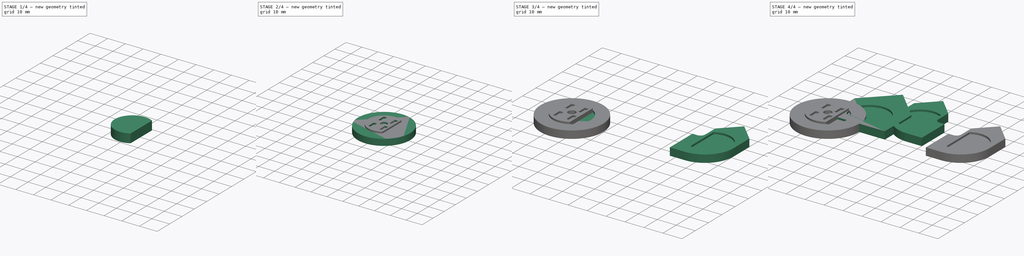
[diagram: build sequence overview — one tinted view per stage of 4, left to right]
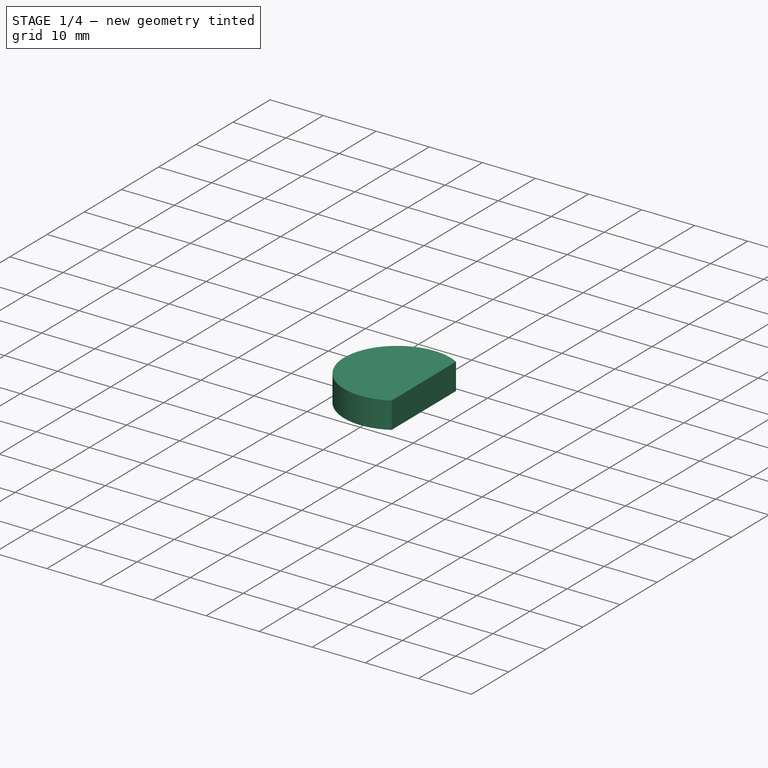
[diagram: stage 1 of 4 — iso view after this stage's code; geometry added in this stage tinted green]
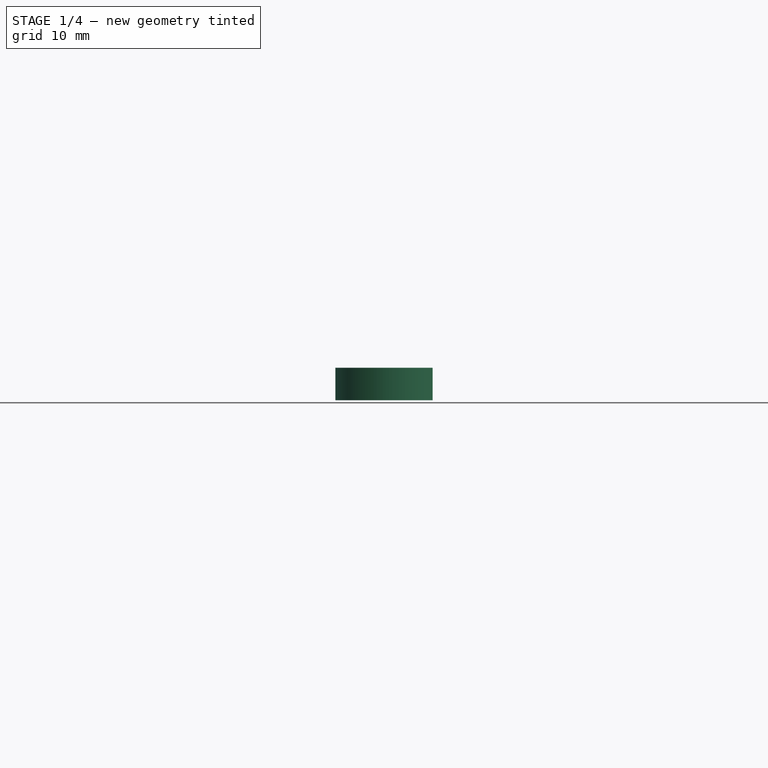
[diagram: stage 1 of 4 — front view after this stage's code; geometry added in this stage tinted green]
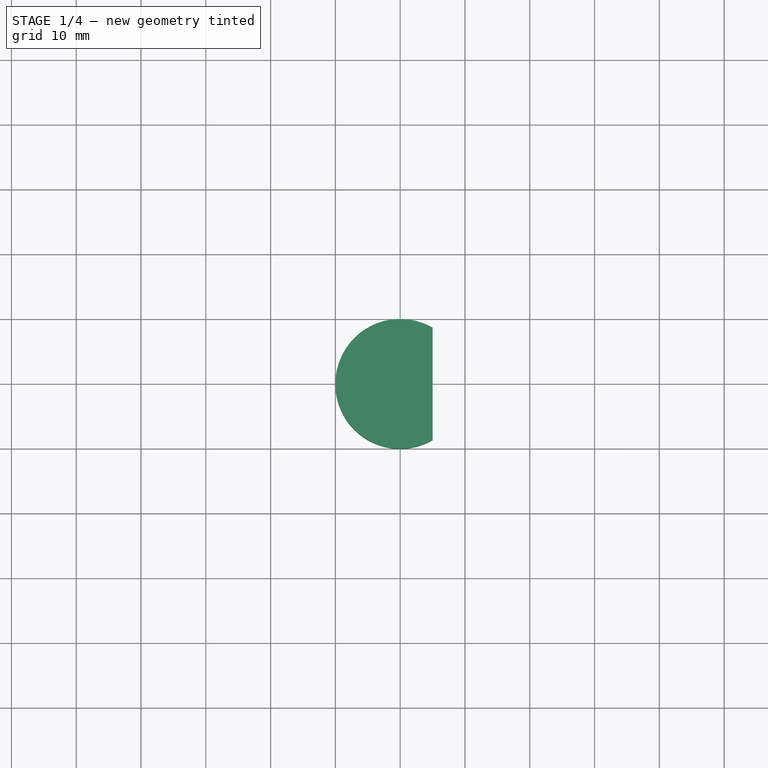
[diagram: stage 1 of 4 — top view after this stage's code; geometry added in this stage tinted green]
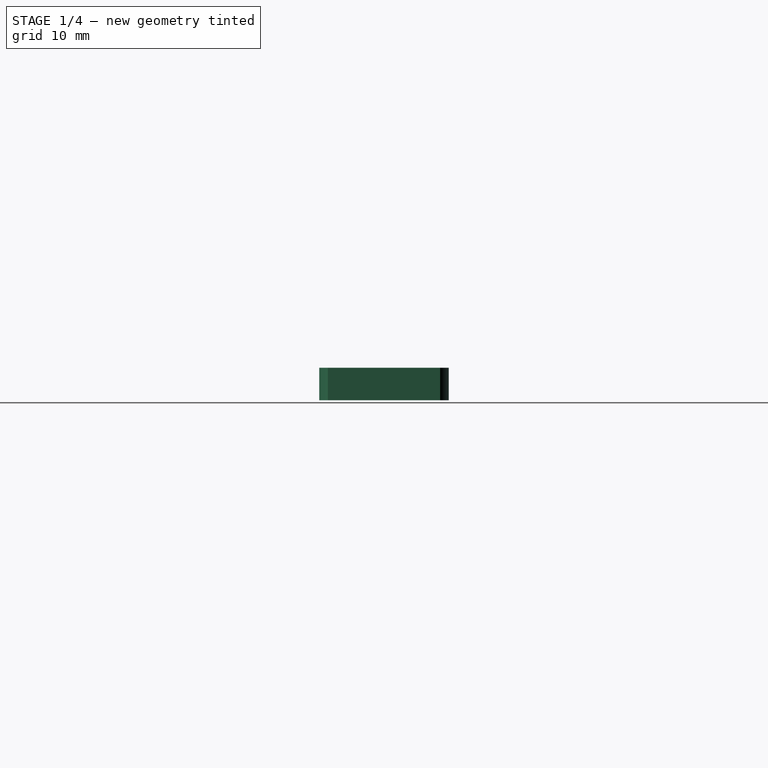
[diagram: stage 1 of 4 — right view after this stage's code; geometry added in this stage tinted green]
FCSTD DOCUMENT  (FreeCAD 0.14R3700 (Git))
Label: bloques
License: CC-BY 3.0
LicenseURL: http://creativecommons.org/licenses/by/3.0/
objects: Sketcher::SketchObject×12, PartDesign::Pocket×7, PartDesign::Pad×5
note: 36 computed .brp shape members not serialized (recipe doc carries the construction recipe); baked Part::Feature solids carry a one-line shape summary decoded from their .brp

FEATURE [Sketcher::SketchObject] Sketch007
  sketch-geometry (2):
    g0: ArcOfCircle CenterX=0 CenterY=0 CenterZ=0 NormalX=0 NormalY=0 NormalZ=1 Radius=10 StartAngle=1.0472 EndAngle=5.23599
    g1: LineSegment StartX=5 StartY=8.66025 StartZ=0 EndX=5 EndY=-8.66025 EndZ=0
  constraints (6):
    c: Radius(g0) = 10
    c: Coincident(g0,g-1)
    c: Vertical(g1)
    c: Coincident(g0,g1)
    c: Coincident(g0,g1)
    c: DistanceX(g-1,g0) = 5
FEATURE [PartDesign::Pad] Pad003
  Length = 5
  Length2 = 100
  Sketch = -> Sketch007
  Type = 0
FEATURE [Sketcher::SketchObject] Sketch010
  sketch-geometry (2):
    g0: ArcOfCircle CenterX=0 CenterY=0 CenterZ=0 NormalX=0 NormalY=0 NormalZ=1 Radius=10 StartAngle=1.0472 EndAngle=5.23599
    g1: LineSegment StartX=5 StartY=8.66025 StartZ=0 EndX=5 EndY=-8.66025 EndZ=0
  constraints (6):
    c: Coincident(g0,g-1)
    c: Radius(g0) = 10
    c: Vertical(g1)
    c: Coincident(g0,g1)
    c: Coincident(g0,g1)
    c: DistanceX(g-1,g0) = 5
FEATURE [PartDesign::Pad] Pad004
  Length = 4
  Length2 = 100
  Sketch = -> Sketch010
  Type = 0
FEATURE [Sketcher::SketchObject] Sketch011
  Placement = pos=(0,0,4) rot=(0,0,1;0rad)
  Support = -> Pad004 [Face4]
  sketch-geometry (4):
    g0: LineSegment StartX=-2 StartY=7 StartZ=0 EndX=2 EndY=7 EndZ=0
    g1: LineSegment StartX=2 StartY=7 StartZ=0 EndX=2 EndY=-7 EndZ=0
    g2: LineSegment StartX=2 StartY=-7 StartZ=0 EndX=-2 EndY=-7 EndZ=0
    g3: LineSegment StartX=-2 StartY=-7 StartZ=0 EndX=-2 EndY=7 EndZ=0
  constraints (13):
    c: Coincident(g0,g1)
    c: Coincident(g1,g2)
    c: Coincident(g2,g3)
    c: Coincident(g3,g0)
    c: Horizontal(g0)
    c: Horizontal(g2)
    c: Vertical(g1)
    c: Vertical(g3)
    c: Equal(g0,g2)
    c: DistanceX(g0) = 4
    c: Symmetric(g0,g0,g-2)
    c: DistanceY(g1) = -14
    c: DistanceY(g-1,g0) = 7
FEATURE [PartDesign::Pocket] Pocket006  label="fichaLab2"
  Length = 5
  Sketch = -> Sketch011
  Type = 0
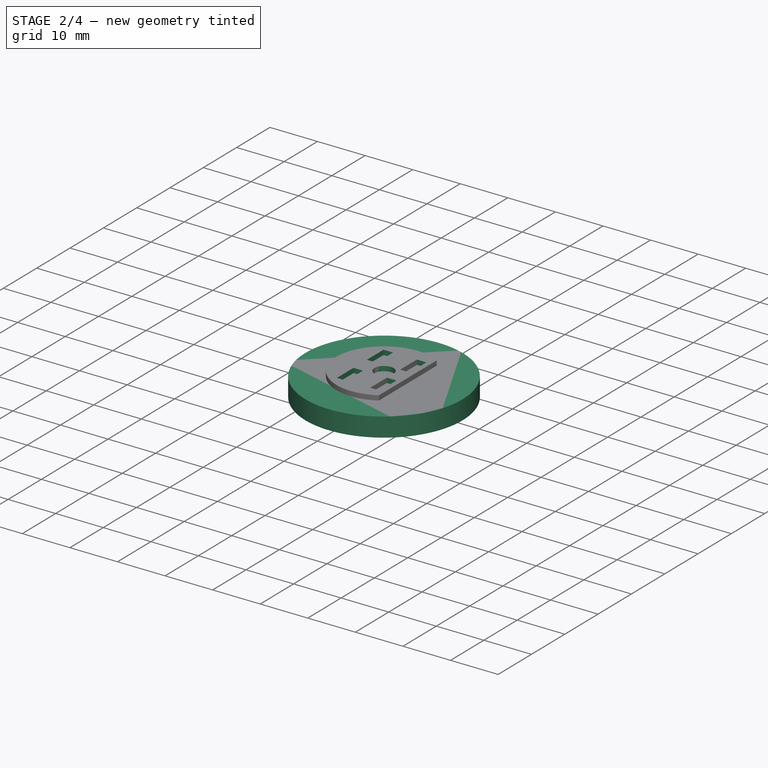
[diagram: stage 2 of 4 — iso view after this stage's code; geometry added in this stage tinted green]
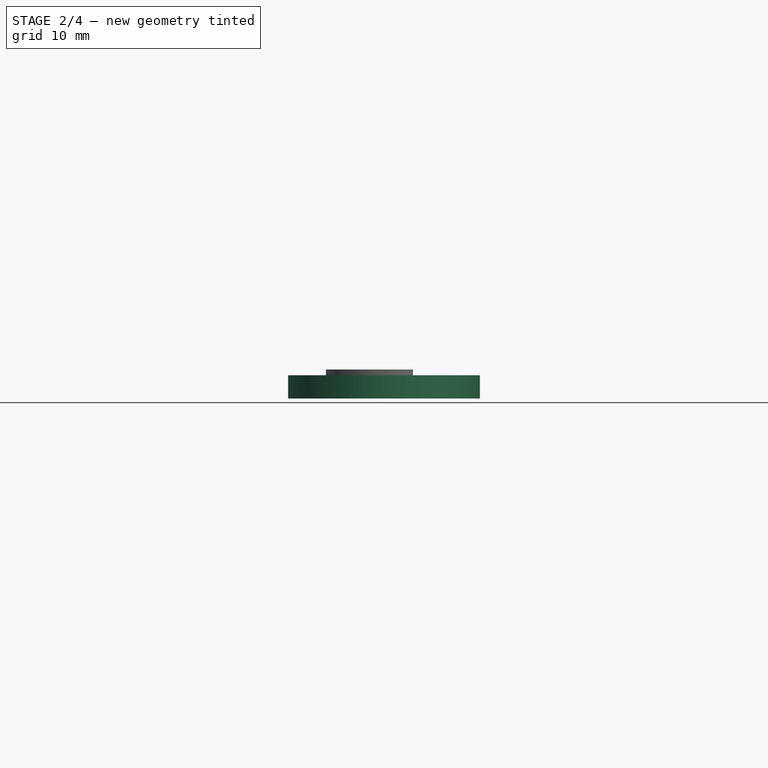
[diagram: stage 2 of 4 — front view after this stage's code; geometry added in this stage tinted green]
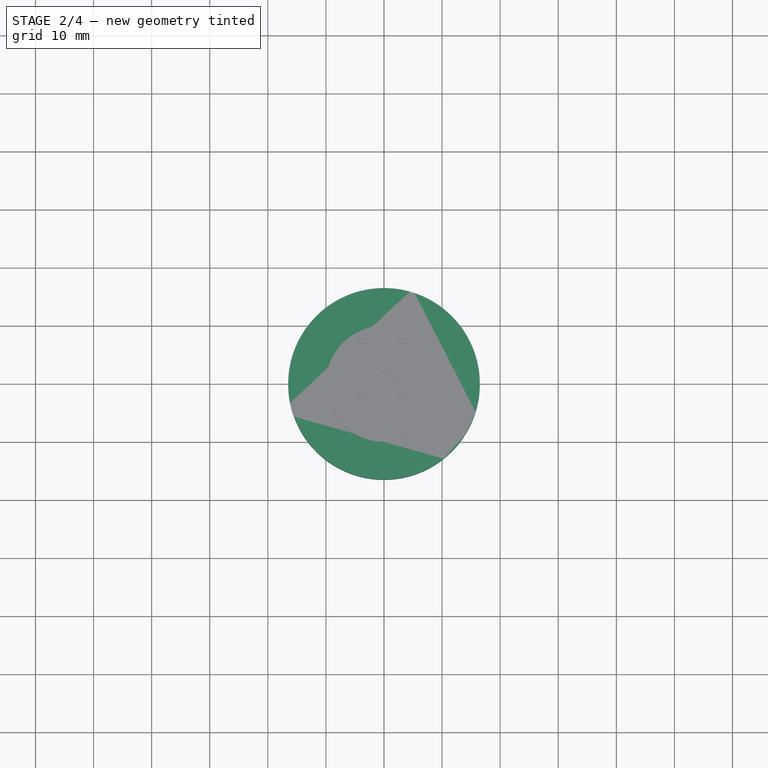
[diagram: stage 2 of 4 — top view after this stage's code; geometry added in this stage tinted green]
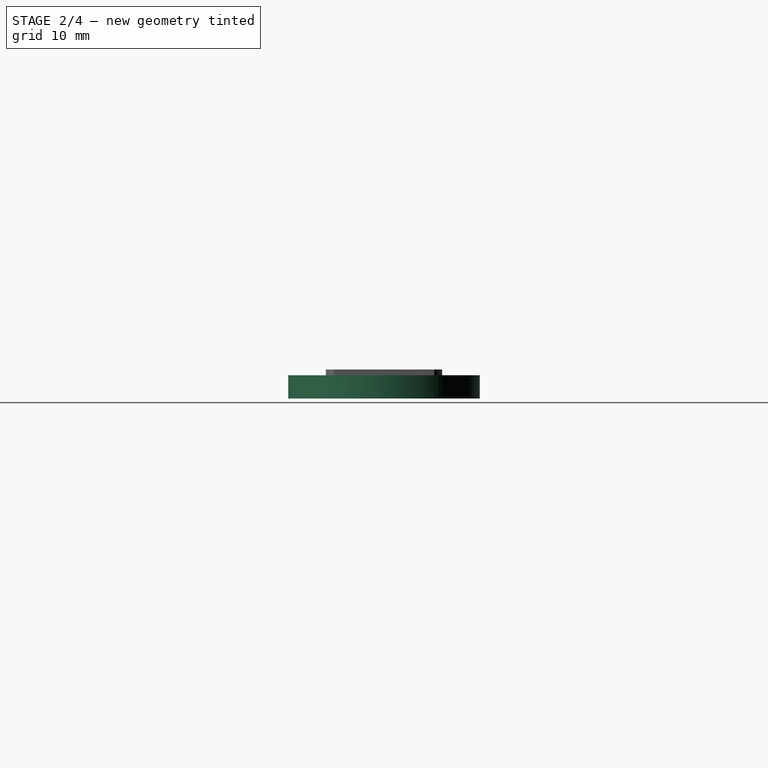
[diagram: stage 2 of 4 — right view after this stage's code; geometry added in this stage tinted green]
FEATURE [Sketcher::SketchObject] Sketch005
  sketch-geometry (1):
    g0: Circle CenterX=0 CenterY=0 CenterZ=0 NormalX=0 NormalY=0 NormalZ=1 Radius=16.5
  constraints (2):
    c: Radius(g0) = 16.5
    c: Coincident(g0,g-1)
FEATURE [PartDesign::Pad] Pad002
  Length = 4
  Length2 = 100
  Sketch = -> Sketch005
  Type = 0
FEATURE [Sketcher::SketchObject] Sketch008
  Placement = pos=(0,0,5) rot=(0,0,1;0rad)
  Support = -> Pad003 [Face4]
  sketch-geometry (16):
    g0: LineSegment StartX=-5 StartY=7 StartZ=0 EndX=-3 EndY=7 EndZ=0
    g1: LineSegment StartX=-3 StartY=7 StartZ=0 EndX=-3 EndY=2 EndZ=0
    g2: LineSegment StartX=-3 StartY=2 StartZ=0 EndX=-5 EndY=2 EndZ=0
    g3: LineSegment StartX=-5 StartY=2 StartZ=0 EndX=-5 EndY=7 EndZ=0
    g4: LineSegment StartX=2 StartY=7 StartZ=0 EndX=4 EndY=7 EndZ=0
    g5: LineSegment StartX=4 StartY=7 StartZ=0 EndX=4 EndY=2 EndZ=0
    g6: LineSegment StartX=4 StartY=2 StartZ=0 EndX=2 EndY=2 EndZ=0
    g7: LineSegment StartX=2 StartY=2 StartZ=0 EndX=2 EndY=7 EndZ=0
    g8: LineSegment StartX=2 StartY=-2 StartZ=0 EndX=4 EndY=-2 EndZ=0
    g9: LineSegment StartX=4 StartY=-2 StartZ=0 EndX=4 EndY=-7 EndZ=0
    g10: LineSegment StartX=4 StartY=-7 StartZ=0 EndX=2 EndY=-7 EndZ=0
    g11: LineSegment StartX=2 StartY=-7 StartZ=0 EndX=2 EndY=-2 EndZ=0
    g12: LineSegment StartX=-5 StartY=-2 StartZ=0 EndX=-3 EndY=-2 EndZ=0
    g13: LineSegment StartX=-3 StartY=-2 StartZ=0 EndX=-3 EndY=-7 EndZ=0
    g14: LineSegment StartX=-3 StartY=-7 StartZ=0 EndX=-5 EndY=-7 EndZ=0
    g15: LineSegment StartX=-5 StartY=-7 StartZ=0 EndX=-5 EndY=-2 EndZ=0
FEATURE [PartDesign::Pocket] Pocket004
  Length = 5
  Sketch = -> Sketch008
  Type = 0
FEATURE [Sketcher::SketchObject] Sketch009
  ExternalGeometry = -> [Pocket004]
  Placement = pos=(0,0,5) rot=(0,0,1;0rad)
  Support = -> Pocket004 [Face4]
  sketch-geometry (2):
    g0: GeomPoint [constr] X=0 Y=0 Z=0
    g1: Circle CenterX=0 CenterY=0 CenterZ=0 NormalX=0 NormalY=0 NormalZ=1 Radius=2
  constraints (2):
    c: Coincident(g1,g-1)
    c: Radius(g1) = 2
FEATURE [PartDesign::Pocket] Pocket005  label="fichaLab3y4"
  Length = 4
  Sketch = -> Sketch009
  Type = 0
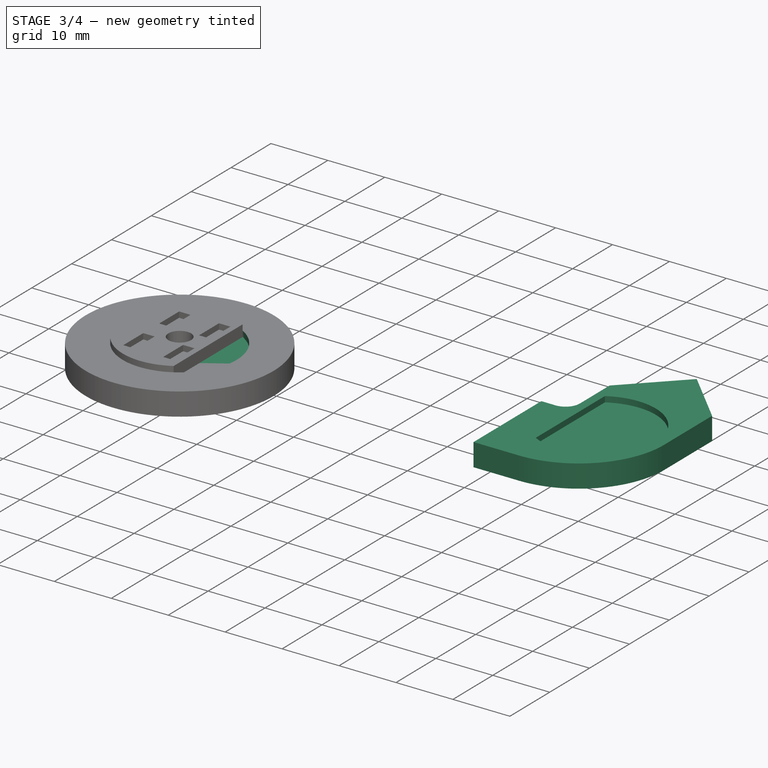
[diagram: stage 3 of 4 — iso view after this stage's code; geometry added in this stage tinted green]
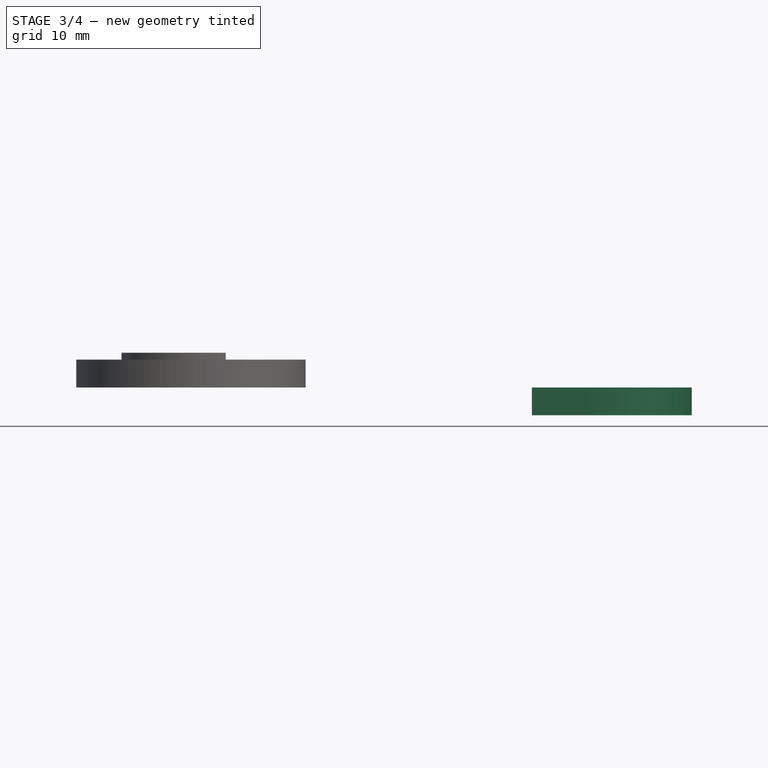
[diagram: stage 3 of 4 — front view after this stage's code; geometry added in this stage tinted green]
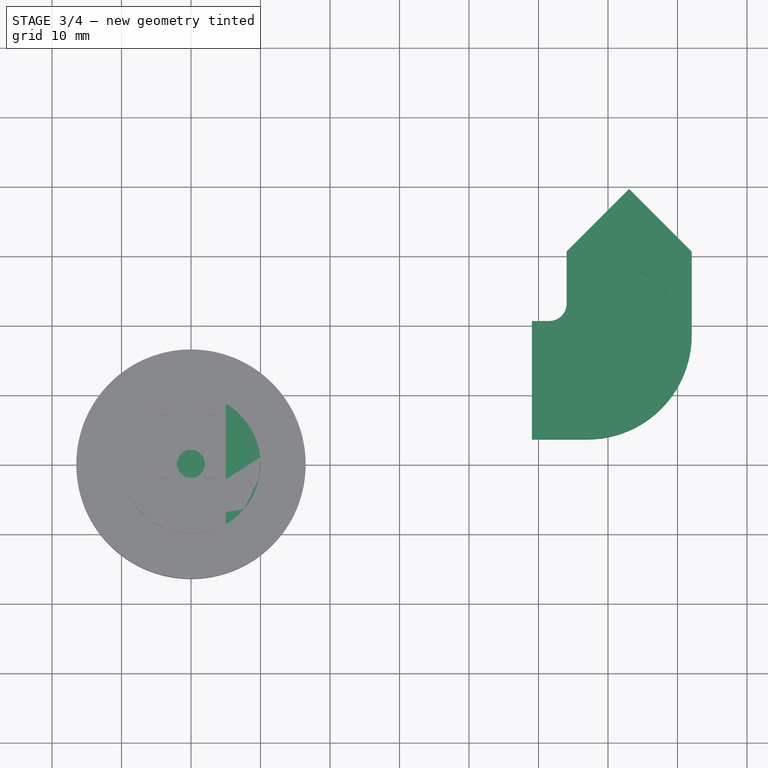
[diagram: stage 3 of 4 — top view after this stage's code; geometry added in this stage tinted green]
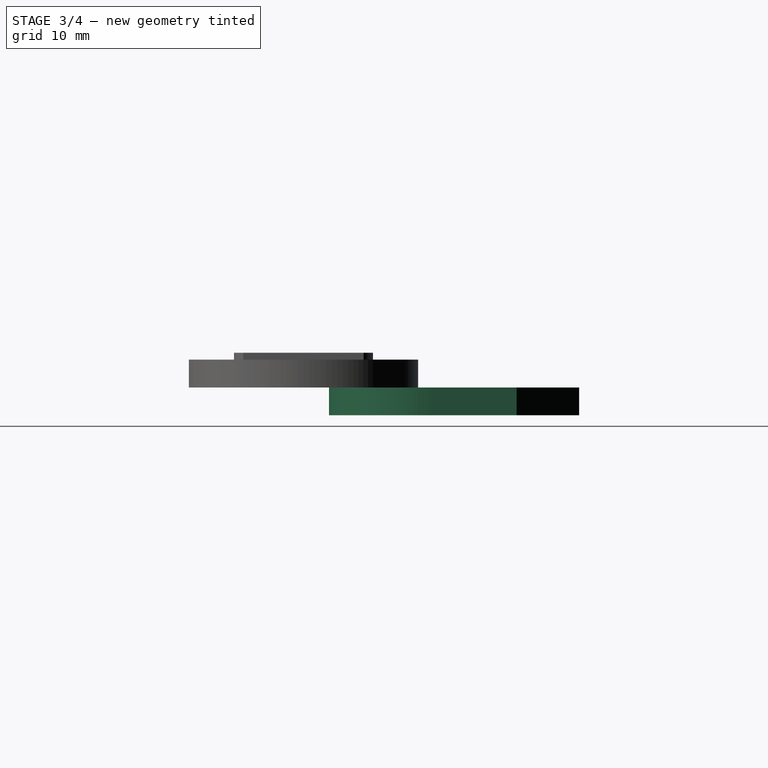
[diagram: stage 3 of 4 — right view after this stage's code; geometry added in this stage tinted green]
FEATURE [Sketcher::SketchObject] Sketch003
  Placement = pos=(96,0,0) rot=(0,1,0;3.14159rad)
  sketch-geometry (12):
    g0: LineSegment StartX=32.9513 StartY=39.6654 StartZ=0 EndX=23.9513 EndY=30.6654 EndZ=0
    g1: LineSegment StartX=23.9513 StartY=30.6654 StartZ=0 EndX=23.9513 EndY=18.6654 EndZ=0
    g2: LineSegment StartX=32.9513 StartY=39.6654 StartZ=0 EndX=41.9513 EndY=30.6654 EndZ=0
    g3: LineSegment StartX=41.9513 StartY=30.6654 StartZ=0 EndX=41.9513 EndY=23.1654 EndZ=0
    g4: LineSegment StartX=46.9513 StartY=20.6654 StartZ=0 EndX=46.9513 EndY=3.66541 EndZ=0
    g5: LineSegment StartX=46.9513 StartY=3.66541 StartZ=0 EndX=38.9513 EndY=3.66541 EndZ=0
    g6: LineSegment StartX=46.9513 StartY=20.6654 StartZ=0 EndX=44.4512 EndY=20.6654 EndZ=0
    g7: ArcOfCircle CenterX=38.9513 CenterY=18.6654 CenterZ=0 NormalX=0 NormalY=0 NormalZ=1 Radius=15 StartAngle=3.14159 EndAngle=4.71239
    g8: ArcOfCircle CenterX=44.4513 CenterY=23.1654 CenterZ=0 NormalX=0 NormalY=0 NormalZ=1 Radius=2.5 StartAngle=3.1416 EndAngle=4.71238
    g9: LineSegment [constr] StartX=23.9513 StartY=30.6654 StartZ=0 EndX=41.9513 EndY=30.6654 EndZ=0
    g10: LineSegment [constr] StartX=46.9513 StartY=3.66541 StartZ=0 EndX=32.9513 EndY=3.66541 EndZ=0
    g11: LineSegment [constr] StartX=32.9513 StartY=39.6654 StartZ=0 EndX=32.9513 EndY=3.66541 EndZ=0
  constraints (35):
    c: Coincident(g0,g1)
    c: Vertical(g1)
    c: Coincident(g0,g2)
    c: Coincident(g2,g3)
    c: Vertical(g3)
    c: Vertical(g4)
    c: Coincident(g4,g5)
    c: Coincident(g4,g6)
    c: Horizontal(g6)
    c: Horizontal(g5)
    c: Coincident(g7,g1)
    c: Coincident(g7,g5)
    c: Coincident(g8,g3)
    c: Coincident(g8,g6)
    c: Tangent(g1,g7)
    c: Tangent(g8,g3)
    c: Tangent(g6,g8)
    c: Tangent(g5,g7)
    c: Angle(g0,g2) = 1.5708
    c: Coincident(g9,g0)
    c: Coincident(g9,g2)
    c: Horizontal(g9)
    c: Angle(g9,g0) = 0.785398
    c: DistanceY(g4) = -17
    c: DistanceX(g9) = 18
    c: Coincident(g10,g4)
    c: Horizontal(g10)
    c: Coincident(g11,g0)
    c: Vertical(g11)
    c: Perpendicular(g11,g10)
    c: DistanceY(g11) = -36
    c: Coincident(g10,g11)
    c: DistanceX(g10) = -14
    c: Radius(g7) = 15
    c: Radius(g8) = 2.5
FEATURE [PartDesign::Pad] Pad
  Length = 4
  Length2 = 100
  Placement = pos=(96,0,0) rot=(0,1,0;3.14159rad)
  Sketch = -> Sketch003
  Type = 0
FEATURE [Sketcher::SketchObject] Sketch004
  ExternalGeometry = -> [Pad]
  Placement = pos=(96,0,0) rot=(0,0,1;3.14159rad)
  Support = -> Pad [Face10]
  sketch-geometry (2):
    g0: ArcOfCircle CenterX=35.4513 CenterY=-18.6654 CenterZ=0 NormalX=0 NormalY=0 NormalZ=1 Radius=10 StartAngle=1.0472 EndAngle=5.23599
    g1: LineSegment StartX=40.4513 StartY=-10.0052 StartZ=0 EndX=40.4513 EndY=-27.3257 EndZ=0
  constraints (7):
    c: Radius(g0) = 10
    c: Vertical(g1)
    c: Coincident(g0,g1)
    c: Coincident(g0,g1)
    c: DistanceX(g0,g0) = 5
    c: DistanceX(g0,g-3) = 11.5
    c: DistanceY(g0,g-3) = 15
FEATURE [PartDesign::Pocket] Pocket002  label="fichaTurnLeft"
  Length = 1
  Placement = pos=(96,0,0) rot=(0,1,0;3.14159rad)
  Sketch = -> Sketch004
  Type = 0
FEATURE [Sketcher::SketchObject] Sketch006
  Placement = pos=(0,0,4) rot=(0,0,1;0rad)
  Support = -> Pad002 [Face3]
  sketch-geometry (2):
    g0: ArcOfCircle CenterX=0 CenterY=0 CenterZ=0 NormalX=0 NormalY=0 NormalZ=1 Radius=10 StartAngle=4.18879 EndAngle=8.37758
    g1: LineSegment StartX=-5 StartY=-8.66025 StartZ=0 EndX=-5 EndY=8.66025 EndZ=0
  constraints (6):
    c: Radius(g0) = 10
    c: Coincident(g0,g-1)
    c: Vertical(g1)
    c: Coincident(g0,g1)
    c: Coincident(g0,g1)
    c: DistanceX(g-1,g0) = -5
FEATURE [PartDesign::Pocket] Pocket003  label="fichaStop"
  Length = 1
  Sketch = -> Sketch006
  Type = 0
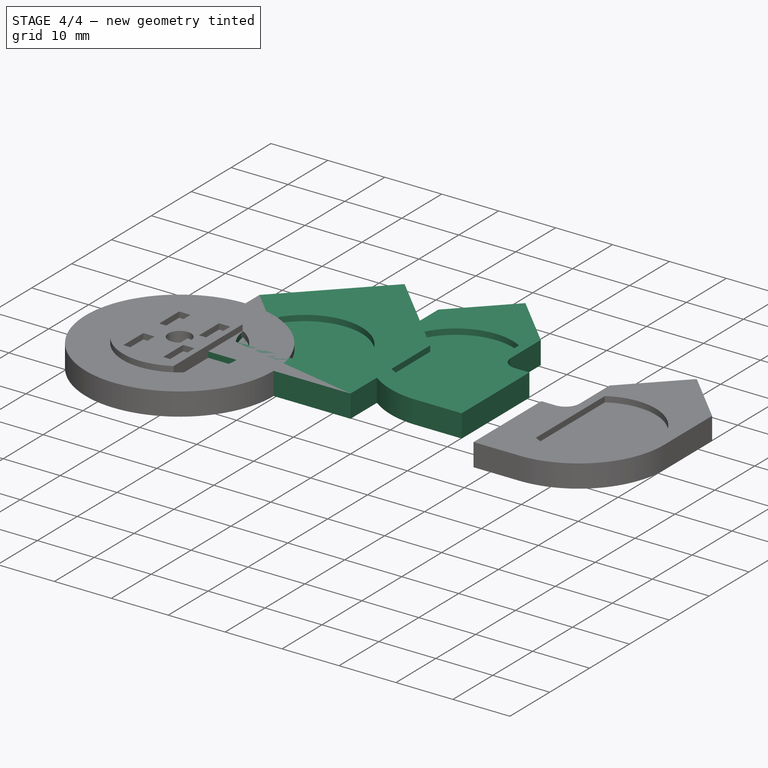
[diagram: stage 4 of 4 — iso view after this stage's code; geometry added in this stage tinted green]
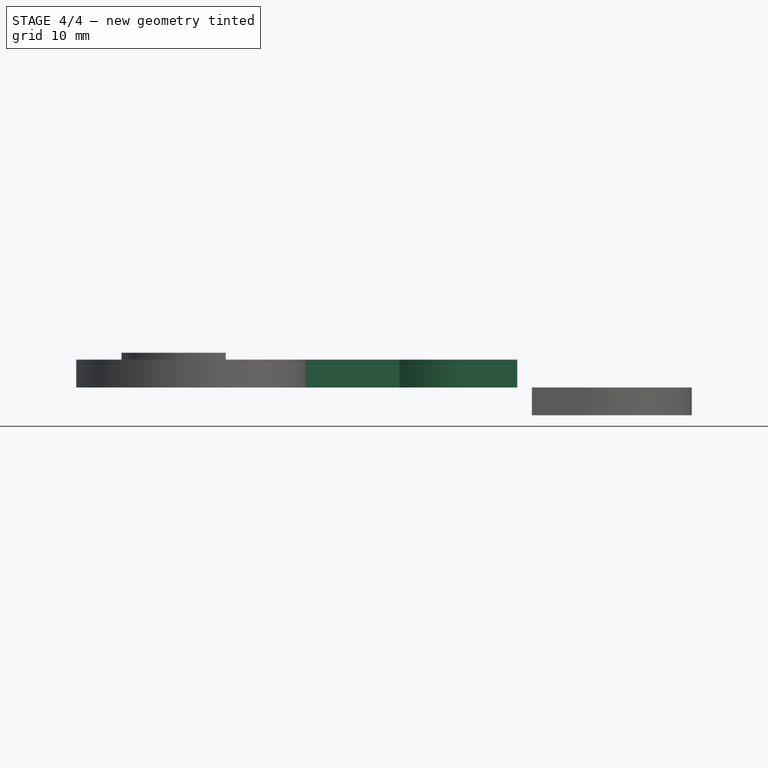
[diagram: stage 4 of 4 — front view after this stage's code; geometry added in this stage tinted green]
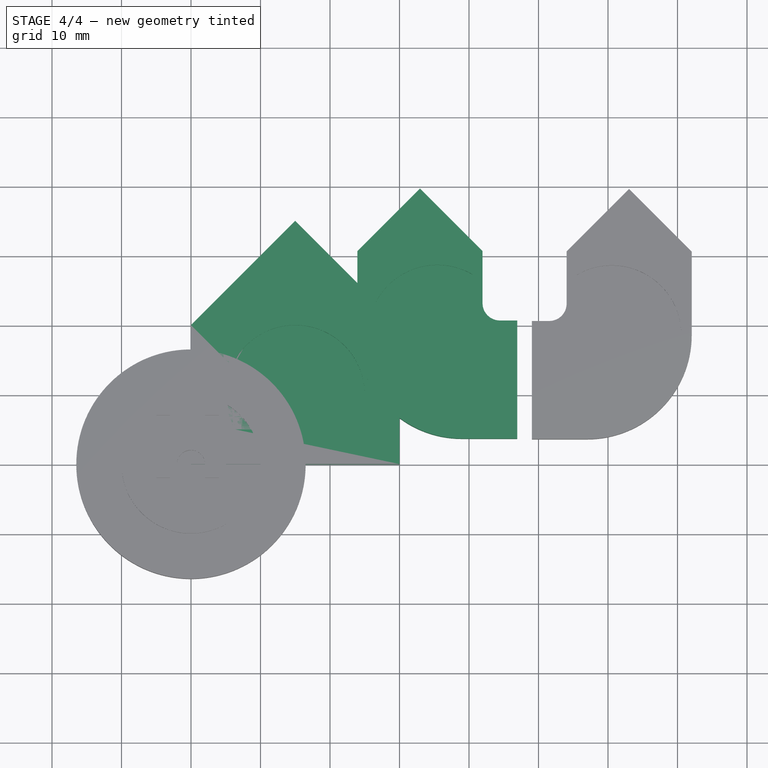
[diagram: stage 4 of 4 — top view after this stage's code; geometry added in this stage tinted green]
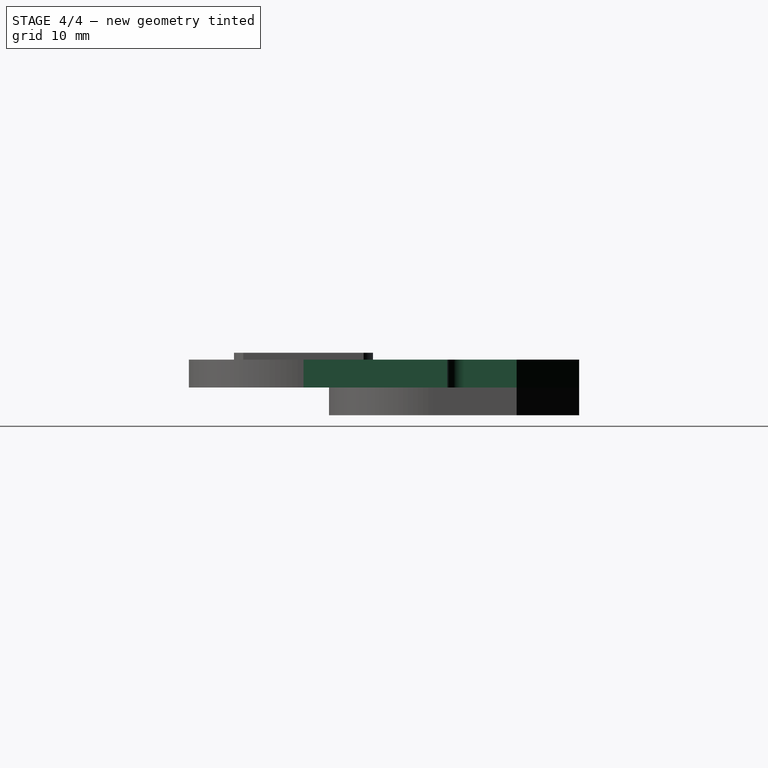
[diagram: stage 4 of 4 — right view after this stage's code; geometry added in this stage tinted green]
FEATURE [Sketcher::SketchObject] Sketch001
  Placement = pos=(0,0,4) rot=(0,0,1;0rad)
  sketch-geometry (2):
    g0: ArcOfCircle CenterX=15 CenterY=10 CenterZ=0 NormalX=0 NormalY=0 NormalZ=1 Radius=10 StartAngle=5.75959 EndAngle=9.94838
    g1: LineSegment StartX=6.33975 StartY=5 StartZ=0 EndX=23.6603 EndY=5 EndZ=0
  constraints (7):
    c: Radius(g0) = 10
    c: Horizontal(g1)
    c: PointOnObject(g0,g1)
    c: PointOnObject(g0,g1)
    c: Coincident(g1,g0)
    c: Coincident(g1,g0)
    c: DistanceY(g0,g0) = 5
FEATURE [PartDesign::Pocket] Pocket  label="fichaForwad"
  Length = 1
  Sketch = -> Sketch001
  Type = 0
FEATURE [Sketcher::SketchObject] Sketch
  sketch-geometry (12):
    g0: LineSegment StartX=32.9513 StartY=39.6654 StartZ=0 EndX=23.9513 EndY=30.6654 EndZ=0
    g1: LineSegment StartX=23.9513 StartY=30.6654 StartZ=0 EndX=23.9513 EndY=18.6654 EndZ=0
    g2: LineSegment StartX=32.9513 StartY=39.6654 StartZ=0 EndX=41.9513 EndY=30.6654 EndZ=0
    g3: LineSegment StartX=41.9513 StartY=30.6654 StartZ=0 EndX=41.9513 EndY=23.1654 EndZ=0
    g4: LineSegment StartX=46.9513 StartY=20.6654 StartZ=0 EndX=46.9513 EndY=3.66541 EndZ=0
    g5: LineSegment StartX=46.9513 StartY=3.66541 StartZ=0 EndX=38.9513 EndY=3.66541 EndZ=0
    g6: LineSegment StartX=46.9513 StartY=20.6654 StartZ=0 EndX=44.4512 EndY=20.6654 EndZ=0
    g7: ArcOfCircle CenterX=38.9513 CenterY=18.6654 CenterZ=0 NormalX=0 NormalY=0 NormalZ=1 Radius=15 StartAngle=3.14159 EndAngle=4.71239
    g8: ArcOfCircle CenterX=44.4513 CenterY=23.1654 CenterZ=0 NormalX=0 NormalY=0 NormalZ=1 Radius=2.5 StartAngle=3.1416 EndAngle=4.71238
    g9: LineSegment [constr] StartX=23.9513 StartY=30.6654 StartZ=0 EndX=41.9513 EndY=30.6654 EndZ=0
    g10: LineSegment [constr] StartX=46.9513 StartY=3.66541 StartZ=0 EndX=32.9513 EndY=3.66541 EndZ=0
    g11: LineSegment [constr] StartX=32.9513 StartY=39.6654 StartZ=0 EndX=32.9513 EndY=3.66541 EndZ=0
  constraints (35):
    c: Coincident(g0,g1)
    c: Vertical(g1)
    c: Coincident(g0,g2)
    c: Coincident(g2,g3)
    c: Vertical(g3)
    c: Vertical(g4)
    c: Coincident(g4,g5)
    c: Coincident(g4,g6)
    c: Horizontal(g6)
    c: Horizontal(g5)
    c: Coincident(g7,g1)
    c: Coincident(g7,g5)
    c: Coincident(g8,g3)
    c: Coincident(g8,g6)
    c: Tangent(g1,g7)
    c: Tangent(g8,g3)
    c: Tangent(g6,g8)
    c: Tangent(g5,g7)
    c: Angle(g0,g2) = 1.5708
    c: Coincident(g9,g0)
    c: Coincident(g9,g2)
    c: Horizontal(g9)
    c: Angle(g9,g0) = 0.785398
    c: DistanceY(g4) = -17
    c: DistanceX(g9) = 18
    c: Coincident(g10,g4)
    c: Horizontal(g10)
    c: Coincident(g11,g0)
    c: Vertical(g11)
    c: Perpendicular(g11,g10)
    c: DistanceY(g11) = -36
    c: Coincident(g10,g11)
    c: DistanceX(g10) = -14
    c: Radius(g7) = 15
    c: Radius(g8) = 2.5
FEATURE [PartDesign::Pad] Pad001
  Length = 4
  Length2 = 100
  Sketch = -> Sketch
  Type = 0
FEATURE [Sketcher::SketchObject] Sketch002
  ExternalGeometry = -> [Pad001]
  Placement = pos=(0,0,4) rot=(0,0,1;0rad)
  Support = -> Pad001 [Face11]
  sketch-geometry (2):
    g0: ArcOfCircle CenterX=35.4513 CenterY=18.6654 CenterZ=0 NormalX=0 NormalY=0 NormalZ=1 Radius=10 StartAngle=1.0472 EndAngle=5.23599
    g1: LineSegment StartX=40.4513 StartY=27.3257 StartZ=0 EndX=40.4513 EndY=10.0052 EndZ=0
  constraints (7):
    c: Radius(g0) = 10
    c: Vertical(g1)
    c: Coincident(g0,g1)
    c: Coincident(g0,g1)
    c: DistanceX(g0,g0) = 5
    c: DistanceX(g0,g-3) = 11.5
    c: DistanceY(g0,g-3) = -15
FEATURE [PartDesign::Pocket] Pocket001  label="fichaTurnRight"
  Length = 1
  Sketch = -> Sketch002
  Type = 0
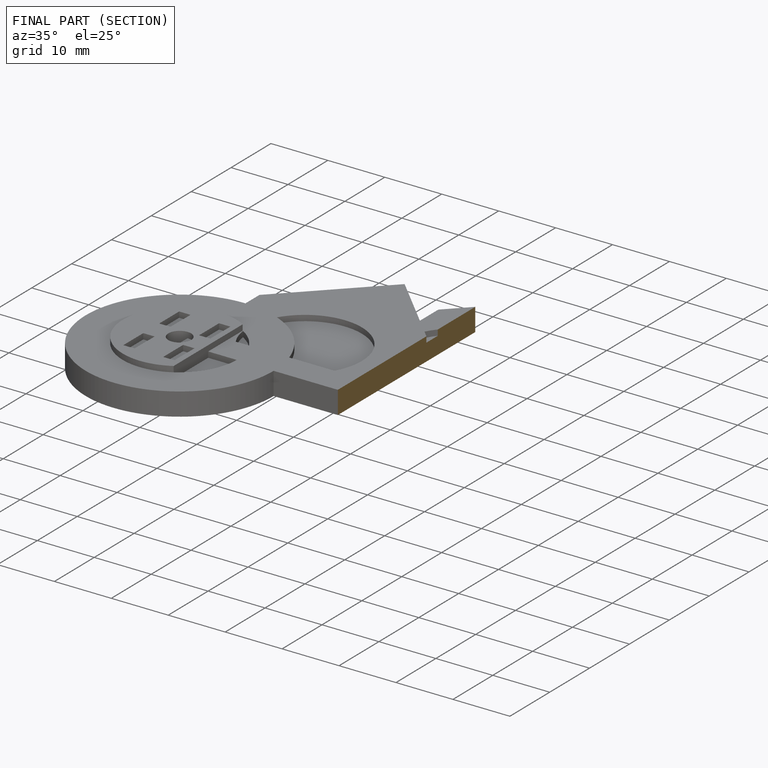
[diagram: finished part — half-section view (interior)]
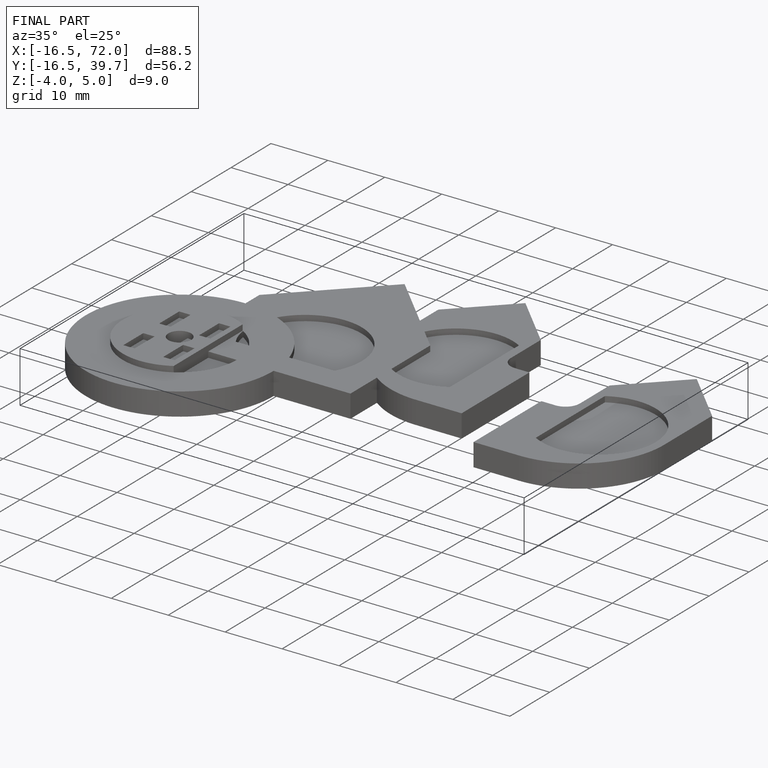
[diagram: finished part — iso view with bounding-box wireframe]
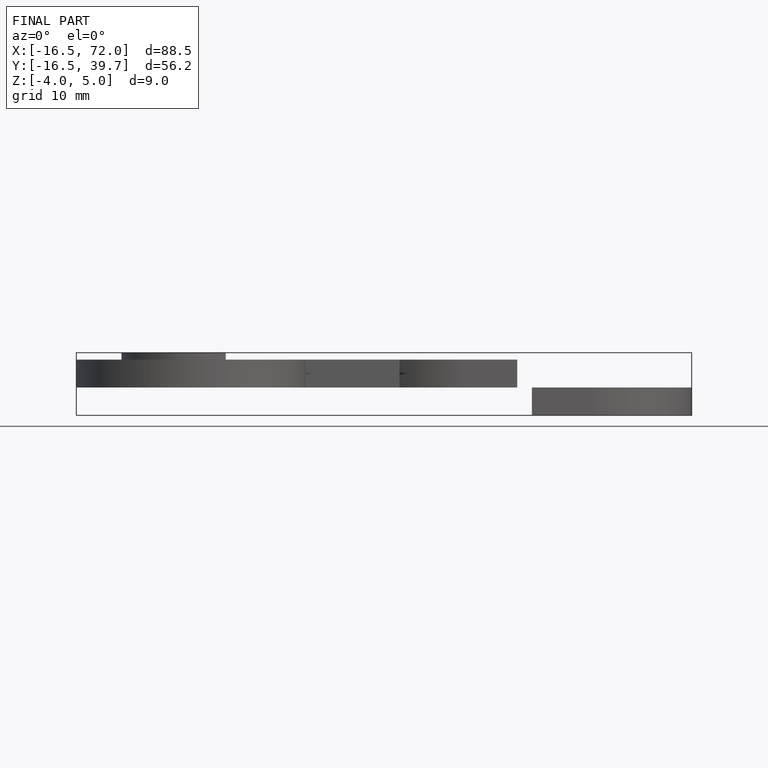
[diagram: finished part — front view with bounding-box wireframe]
